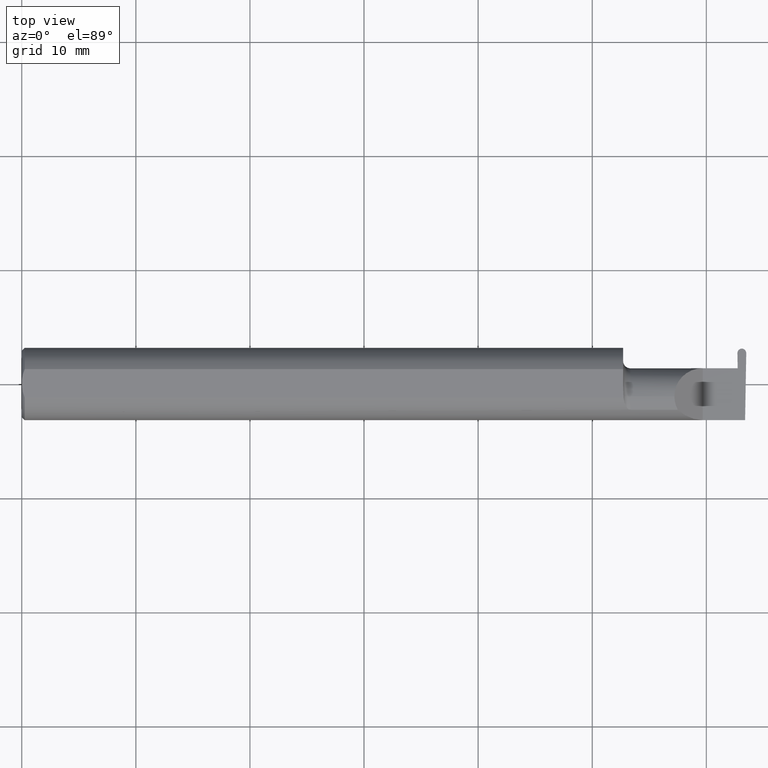
[diagram: clean part render]
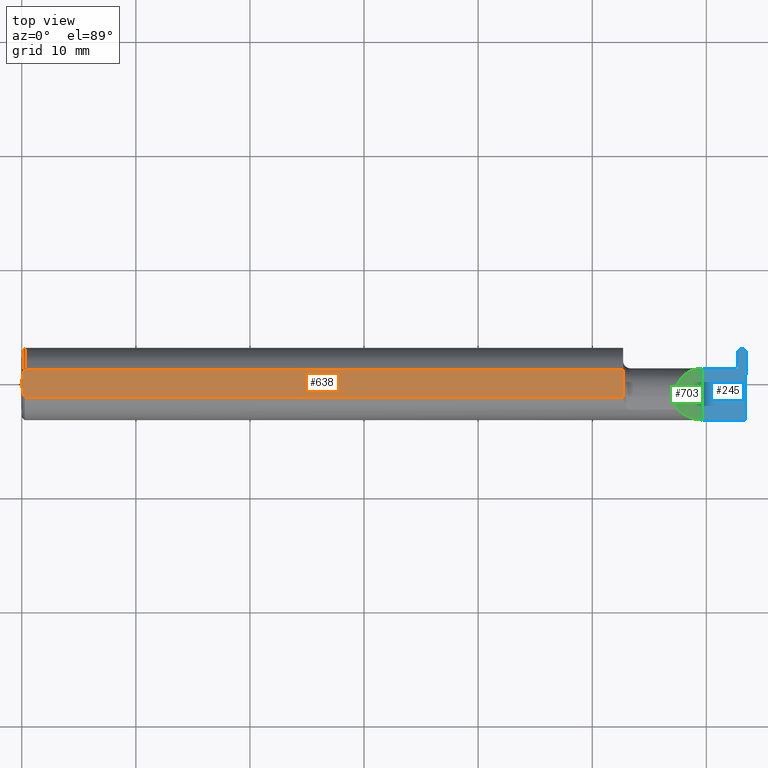
[diagram: same view with three faces highlighted in distinct colors, each labeled with its STEP entity id]
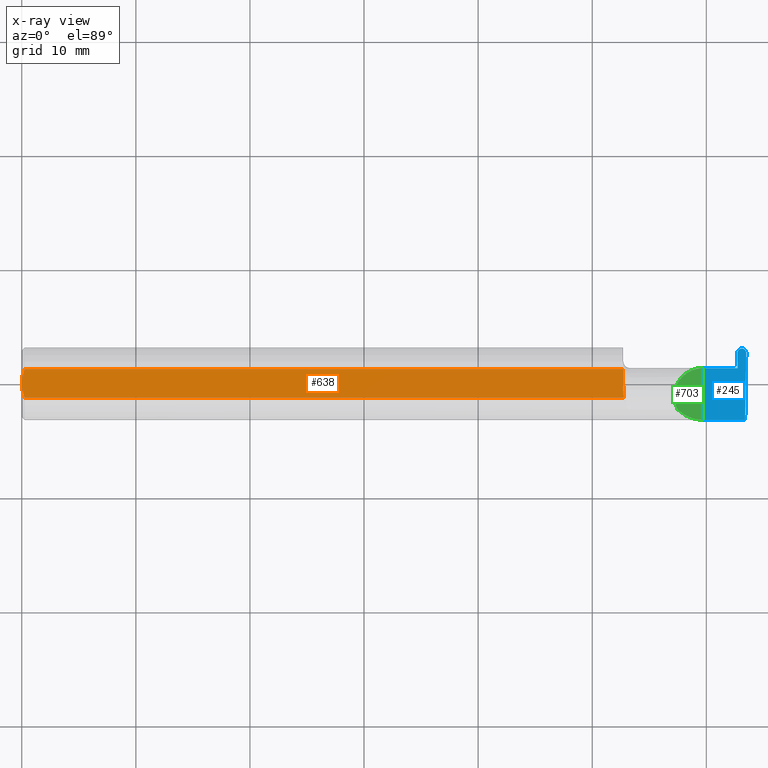
[diagram: x-ray of the same camera — body ghosted, the three highlighted faces saturated]
A machine part, top view with three faces highlighted in distinct colors.
The next image is the same camera in x-ray (body ghosted, the three faces saturated) — at least one of them is partly hidden behind the body in this view.
Their STEP definitions:

[orange] entity #638 — the highlighted planar face has unit normal (0, 0, 1).
#7 = CARTESIAN_POINT ( 'NONE',  ( 0.000000000000000000, 3.414809992080329023E-17, 0.1149999999999999217 ) ) ;
#8 = CARTESIAN_POINT ( 'NONE',  ( 0.01000000000000042348, 0.04898979485566374442, 0.1149999999999999217 ) ) ;
#20 = ORIENTED_EDGE ( 'NONE', *, *, #484, .T. ) ;
#24 = CARTESIAN_POINT ( 'NONE',  ( 2.076314561435346207, -0.04400000000000004602, 0.1149999999999999217 ) ) ;
#31 = DIRECTION ( 'NONE',  ( -1.000000000000000000, -0.000000000000000000, -0.000000000000000000 ) ) ;
#42 = VERTEX_POINT ( 'NONE', #165 ) ;
#70 = ORIENTED_EDGE ( 'NONE', *, *, #287, .F. ) ;
#74 = CARTESIAN_POINT ( 'NONE',  ( 2.075000000000000178, 0.04898979485566374442, 0.1149999999999999217 ) ) ;
#93 = ORIENTED_EDGE ( 'NONE', *, *, #693, .T. ) ;
#115 = CARTESIAN_POINT ( 'NONE',  ( 2.076314561435346651, -0.04483155449656758829, 0.1149999999999999356 ) ) ;
#127 = CARTESIAN_POINT ( 'NONE',  ( 0.006956794985978487743, -0.04122489957750442163, 0.1149999999999999356 ) ) ;
#138 = EDGE_CURVE ( 'NONE', #760, #381, #666, .T. ) ;
#149 = VERTEX_POINT ( 'NONE', #375 ) ;
#151 = CARTESIAN_POINT ( 'NONE',  ( 2.075000000000000178, -0.007643795319155048847, 0.1149999999999999356 ) ) ;
#156 = EDGE_CURVE ( 'NONE', #449, #520, #249, .T. ) ;
#161 = CARTESIAN_POINT ( 'NONE',  ( 2.076314561435346207, -0.03672135622230198598, 0.1149999999999999356 ) ) ;
#165 = CARTESIAN_POINT ( 'NONE',  ( 2.076314561435346207, -0.04400000000000004602, 0.1149999999999999217 ) ) ;
#169 = CARTESIAN_POINT ( 'NONE',  ( 0.000000000000000000, 3.414809992080329023E-17, 0.1149999999999999217 ) ) ;
#173 = CARTESIAN_POINT ( 'NONE',  ( 2.075000000000000178, -0.0003651515414569473403, 0.1149999999999999217 ) ) ;
#190 = CARTESIAN_POINT ( 'NONE',  ( 0.004414142251465132810, -0.03315347577847933824, 0.1149999999999999356 ) ) ;
#204 = PLANE ( 'NONE',  #463 ) ;
#223 = CARTESIAN_POINT ( 'NONE',  ( 0.01000000000000042348, 0.04898979485566374442, 0.1149999999999999217 ) ) ;
#249 = LINE ( 'NONE', #300, #644 ) ;
#262 = B_SPLINE_CURVE_WITH_KNOTS ( 'NONE', 3,
 ( #169, #420, #679, #223 ),
 .UNSPECIFIED., .F., .F.,
 ( 4, 4 ),
 ( 0.002331518380383306322, 0.003601362264757408584 ),
 .UNSPECIFIED. ) ;
#276 = CARTESIAN_POINT ( 'NONE',  ( 2.753179778023443269, 0.1250000000000000278, 0.1149999999999999217 ) ) ;
#287 = EDGE_CURVE ( 'NONE', #381, #505, #262, .T. ) ;
#291 = CARTESIAN_POINT ( 'NONE',  ( 2.076290282237983398, -0.04815824740011447752, 0.1149999999999999356 ) ) ;
#300 = CARTESIAN_POINT ( 'NONE',  ( 2.075000000000000178, 0.1250000000000000278, 0.1149999999999999217 ) ) ;
#303 = VECTOR ( 'NONE', #31, 39.37007874015748143 ) ;
#325 = CARTESIAN_POINT ( 'NONE',  ( 0.01000000000000042348, -0.04898979485566374442, 0.1149999999999999217 ) ) ;
#332 = CARTESIAN_POINT ( 'NONE',  ( 0.000000000000000000, 0.04898979485566374442, 0.1149999999999999217 ) ) ;
#359 = B_SPLINE_CURVE_WITH_KNOTS ( 'NONE', 3,
 ( #686, #291, #497, #554, #115, #562 ),
 .UNSPECIFIED., .F., .F.,
 ( 4, 2, 4 ),
 ( 0.009319464280391123040, 0.009382478399794849655, 0.009445492519198574535 ),
 .UNSPECIFIED. ) ;
#366 = DIRECTION ( 'NONE',  ( 0.000000000000000000, 1.000000000000000000, 0.000000000000000000 ) ) ;
#368 = CARTESIAN_POINT ( 'NONE',  ( 0.0009328476361608245343, -0.01672844127736827086, 0.1149999999999999217 ) ) ;
#375 = CARTESIAN_POINT ( 'NONE',  ( 2.076278290187155484, -0.04898979485567048209, 0.1149999999999999217 ) ) ;
#381 = VERTEX_POINT ( 'NONE', #694 ) ;
#386 = DIRECTION ( 'NONE',  ( 1.000000000000000000, 0.000000000000000000, 0.000000000000000000 ) ) ;
#391 = LINE ( 'NONE', #332, #303 ) ;
#406 = CARTESIAN_POINT ( 'NONE',  ( 2.076049928736321881, -0.02945016372790499812, 0.1149999999999999356 ) ) ;
#420 = CARTESIAN_POINT ( 'NONE',  ( 1.642610067308552155E-16, 0.01684316307400865464, 0.1149999999999999217 ) ) ;
#449 = VERTEX_POINT ( 'NONE', #173 ) ;
#463 = AXIS2_PLACEMENT_3D ( 'NONE', #276, #609, #779 ) ;
#471 = ORIENTED_EDGE ( 'NONE', *, *, #138, .F. ) ;
#484 = EDGE_CURVE ( 'NONE', #149, #42, #359, .T. ) ;
#497 = CARTESIAN_POINT ( 'NONE',  ( 2.076299368641396192, -0.04732662288298106201, 0.1149999999999999356 ) ) ;
#505 = VERTEX_POINT ( 'NONE', #8 ) ;
#520 = VERTEX_POINT ( 'NONE', #74 ) ;
#528 = VECTOR ( 'NONE', #386, 39.37007874015748143 ) ;
#534 = FACE_OUTER_BOUND ( 'NONE', #661, .T. ) ;
#554 = CARTESIAN_POINT ( 'NONE',  ( 2.076311508822837215, -0.04566321385558330670, 0.1149999999999999217 ) ) ;
#559 = ORIENTED_EDGE ( 'NONE', *, *, #156, .T. ) ;
#560 = EDGE_CURVE ( 'NONE', #760, #149, #586, .T. ) ;
#562 = CARTESIAN_POINT ( 'NONE',  ( 2.076314561435346207, -0.04400000000000004602, 0.1149999999999999217 ) ) ;
#579 = CARTESIAN_POINT ( 'NONE',  ( 1.541666659510484467E-16, -0.008419750986449443114, 0.1149999999999999356 ) ) ;
#585 = ORIENTED_EDGE ( 'NONE', *, *, #560, .T. ) ;
#586 = LINE ( 'NONE', #702, #528 ) ;
#609 = DIRECTION ( 'NONE',  ( 0.000000000000000000, 0.000000000000000000, 1.000000000000000000 ) ) ;
#638 = ADVANCED_FACE ( 'NONE', ( #534 ), #204, .T. ) ;
#644 = VECTOR ( 'NONE', #366, 39.37007874015748143 ) ;
#661 = EDGE_LOOP ( 'NONE', ( #585, #20, #744, #559, #93, #70, #471 ) ) ;
#666 = B_SPLINE_CURVE_WITH_KNOTS ( 'NONE', 3,
 ( #751, #127, #190, #368, #579, #7 ),
 .UNSPECIFIED., .F., .F.,
 ( 4, 2, 4 ),
 ( 0.001061950514642623312, 0.001696734447512964709, 0.002331518380383306322 ),
 .UNSPECIFIED. ) ;
#667 = CARTESIAN_POINT ( 'NONE',  ( 2.075000000000000178, -0.0003651515414569473403, 0.1149999999999999217 ) ) ;
#679 = CARTESIAN_POINT ( 'NONE',  ( 0.003880275146595849479, 0.03337499979622342988, 0.1149999999999999217 ) ) ;
#686 = CARTESIAN_POINT ( 'NONE',  ( 2.076278290187155484, -0.04898979485567048209, 0.1149999999999999217 ) ) ;
#693 = EDGE_CURVE ( 'NONE', #520, #505, #391, .T. ) ;
#694 = CARTESIAN_POINT ( 'NONE',  ( 0.000000000000000000, 3.414809992080329023E-17, 0.1149999999999999217 ) ) ;
#702 = CARTESIAN_POINT ( 'NONE',  ( 0.000000000000000000, -0.04898979485566374442, 0.1149999999999999217 ) ) ;
#709 = EDGE_CURVE ( 'NONE', #42, #449, #787, .T. ) ;
#744 = ORIENTED_EDGE ( 'NONE', *, *, #709, .T. ) ;
#751 = CARTESIAN_POINT ( 'NONE',  ( 0.01000000000000042348, -0.04898979485566374442, 0.1149999999999999217 ) ) ;
#760 = VERTEX_POINT ( 'NONE', #325 ) ;
#777 = CARTESIAN_POINT ( 'NONE',  ( 2.075386034718893935, -0.01491156948752236575, 0.1149999999999999217 ) ) ;
#779 = DIRECTION ( 'NONE',  ( 1.000000000000000000, 0.000000000000000000, -0.000000000000000000 ) ) ;
#787 = B_SPLINE_CURVE_WITH_KNOTS ( 'NONE', 3,
 ( #24, #161, #406, #777, #151, #667 ),
 .UNSPECIFIED., .F., .F.,
 ( 4, 2, 4 ),
 ( 0.009445492519198574535, 0.009997058688341168425, 0.01054862485748376232 ),
 .UNSPECIFIED. ) ;

[blue] entity #245 — the highlighted planar face has unit normal (-0, 0, -1).
#19 = CARTESIAN_POINT ( 'NONE',  ( 2.484878586598046724, 0.1219999999999999835, 0.000000000000000000 ) ) ;
#22 = VECTOR ( 'NONE', #715, 39.37007874015748854 ) ;
#32 = LINE ( 'NONE', #174, #417 ) ;
#40 = CARTESIAN_POINT ( 'NONE',  ( 2.469318218598223424, 0.1152528334169432428, 1.896935457484700715E-17 ) ) ;
#49 = CARTESIAN_POINT ( 'NONE',  ( 2.484590643401953791, 0.1219999999999999835, 0.000000000000000000 ) ) ;
#60 = DIRECTION ( 'NONE',  ( 1.000000000000000000, -0.000000000000000000, -0.000000000000000000 ) ) ;
#77 = EDGE_CURVE ( 'NONE', #620, #597, #107, .T. ) ;
#82 = CARTESIAN_POINT ( 'NONE',  ( 2.484590643401953791, 0.1219999999999999835, 0.000000000000000000 ) ) ;
#86 = LINE ( 'NONE', #517, #645 ) ;
#90 = ORIENTED_EDGE ( 'NONE', *, *, #372, .F. ) ;
#100 = CARTESIAN_POINT ( 'NONE',  ( 2.475584878715684667, 0.1219999999999998308, 1.820191004942760528E-17 ) ) ;
#105 = VERTEX_POINT ( 'NONE', #738 ) ;
#107 = LINE ( 'NONE', #487, #771 ) ;
#109 = ORIENTED_EDGE ( 'NONE', *, *, #732, .F. ) ;
#111 = ORIENTED_EDGE ( 'NONE', *, *, #257, .F. ) ;
#137 = VERTEX_POINT ( 'NONE', #621 ) ;
#174 = CARTESIAN_POINT ( 'NONE',  ( 2.075000000000000178, 0.05399999999999999245, 5.204748896376245769E-17 ) ) ;
#212 = CARTESIAN_POINT ( 'NONE',  ( 2.499984884025182375, 0.1057354023860208464, 0.000000000000000000 ) ) ;
#219 = VECTOR ( 'NONE', #551, 39.37007874015748854 ) ;
#224 = VERTEX_POINT ( 'NONE', #601 ) ;
#227 = VERTEX_POINT ( 'NONE', #212 ) ;
#241 = LINE ( 'NONE', #432, #415 ) ;
#245 = ADVANCED_FACE ( 'NONE', ( #349 ), #476, .F. ) ;
#252 = ORIENTED_EDGE ( 'NONE', *, *, #778, .F. ) ;
#257 = EDGE_CURVE ( 'NONE', #227, #620, #675, .T. ) ;
#286 = DIRECTION ( 'NONE',  ( -1.000000000000000000, 0.000000000000000000, 1.224646799147352468E-16 ) ) ;
#289 = VECTOR ( 'NONE', #631, 39.37007874015748143 ) ;
#290 = DIRECTION ( 'NONE',  ( -1.000000000000000000, -0.000000000000000000, -0.000000000000000000 ) ) ;
#313 = ORIENTED_EDGE ( 'NONE', *, *, #329, .F. ) ;
#318 = CARTESIAN_POINT ( 'NONE',  ( 2.500151011401777534, 0.1152528334169432289, -1.895304614445360883E-18 ) ) ;
#322 = CARTESIAN_POINT ( 'NONE',  ( 2.493884351284315848, 0.1219999999999998030, -1.127860089025957857E-18 ) ) ;
#329 = EDGE_CURVE ( 'NONE', #105, #224, #241, .T. ) ;
#342 = AXIS2_PLACEMENT_3D ( 'NONE', #731, #416, #286 ) ;
#349 = FACE_OUTER_BOUND ( 'NONE', #652, .T. ) ;
#364 = ORIENTED_EDGE ( 'NONE', *, *, #766, .T. ) ;
#365 = CARTESIAN_POINT ( 'NONE',  ( 2.469484345974817696, 0.1057354023860208880, 0.000000000000000000 ) ) ;
#372 = EDGE_CURVE ( 'NONE', #597, #137, #578, .T. ) ;
#387 = VERTEX_POINT ( 'NONE', #365 ) ;
#407 = DIRECTION ( 'NONE',  ( 1.000000000000000000, 0.000000000000000000, 0.000000000000000000 ) ) ;
#415 = VECTOR ( 'NONE', #60, 39.37007874015748143 ) ;
#416 = DIRECTION ( 'NONE',  ( -1.224646799147352468E-16, 0.000000000000000000, -1.000000000000000000 ) ) ;
#417 = VECTOR ( 'NONE', #407, 39.37007874015748143 ) ;
#424 = ORIENTED_EDGE ( 'NONE', *, *, #426, .F. ) ;
#426 = EDGE_CURVE ( 'NONE', #224, #387, #494, .T. ) ;
#432 = CARTESIAN_POINT ( 'NONE',  ( 2.470387390782552650, 0.05399999999999999245, 0.000000000000000000 ) ) ;
#467 = CARTESIAN_POINT ( 'NONE',  ( 2.484878586598046724, 0.1219999999999999835, 0.000000000000000000 ) ) ;
#476 = PLANE ( 'NONE',  #342 ) ;
#478 = ORIENTED_EDGE ( 'NONE', *, *, #550, .T. ) ;
#487 = CARTESIAN_POINT ( 'NONE',  ( 3.749399456654637998E-32, -0.1249999999999999861, 3.061616997868380183E-16 ) ) ;
#494 = LINE ( 'NONE', #767, #22 ) ;
#517 = CARTESIAN_POINT ( 'NONE',  ( -3.937007874019685528E-05, 0.1219999999999999835, 0.000000000000000000 ) ) ;
#523 = CARTESIAN_POINT ( 'NONE',  ( 2.499984884025182375, 0.1057354023860208464, 0.000000000000000000 ) ) ;
#525 =( BOUNDED_CURVE ( )  B_SPLINE_CURVE ( 3, ( #523, #318, #322, #19 ),
 .UNSPECIFIED., .F., .F. ) 
 B_SPLINE_CURVE_WITH_KNOTS ( ( 4, 4 ),
 ( 1.677524580234105667, 3.253450286950869685 ),
 .UNSPECIFIED. ) 
 CURVE ( )  GEOMETRIC_REPRESENTATION_ITEM ( )  RATIONAL_B_SPLINE_CURVE ( ( 1.000000000000000000, 0.8035272986452609567, 0.8035272986452609567, 1.000000000000000000 ) ) 
 REPRESENTATION_ITEM ( '' )  );
#536 = CARTESIAN_POINT ( 'NONE',  ( 2.469484345974817696, 0.1057354023860208880, 0.000000000000000000 ) ) ;
#550 = EDGE_CURVE ( 'NONE', #227, #640, #525, .T. ) ;
#551 = DIRECTION ( 'NONE',  ( -0.01745240643727679133, -0.9998476951563912696, 0.000000000000000000 ) ) ;
#578 = LINE ( 'NONE', #811, #289 ) ;
#597 = VERTEX_POINT ( 'NONE', #783 ) ;
#601 = CARTESIAN_POINT ( 'NONE',  ( 2.470387390782552650, 0.05399999999999999245, 0.000000000000000000 ) ) ;
#611 = CARTESIAN_POINT ( 'NONE',  ( 2.499997675007925135, 0.1064681972965584866, 0.000000000000000000 ) ) ;
#620 = VERTEX_POINT ( 'NONE', #654 ) ;
#621 = CARTESIAN_POINT ( 'NONE',  ( 2.350000000000000089, 0.05399999999999999245, 5.204748896376245769E-17 ) ) ;
#631 = DIRECTION ( 'NONE',  ( -0.000000000000000000, 1.000000000000000000, -0.000000000000000000 ) ) ;
#640 = VERTEX_POINT ( 'NONE', #467 ) ;
#645 = VECTOR ( 'NONE', #769, 39.37007874015748143 ) ;
#648 = VERTEX_POINT ( 'NONE', #82 ) ;
#652 = EDGE_LOOP ( 'NONE', ( #109, #364, #424, #313, #252, #90, #680, #111, #478 ) ) ;
#654 = CARTESIAN_POINT ( 'NONE',  ( 2.495957382595297869, -0.1250000000000000000, 0.000000000000000000 ) ) ;
#675 = LINE ( 'NONE', #611, #219 ) ;
#680 = ORIENTED_EDGE ( 'NONE', *, *, #77, .F. ) ;
#715 = DIRECTION ( 'NONE',  ( -0.01745240643727408517, 0.9998476951563912696, -0.000000000000000000 ) ) ;
#731 = CARTESIAN_POINT ( 'NONE',  ( 2.500000000000000000, -0.2500000000000000555, 0.000000000000000000 ) ) ;
#732 = EDGE_CURVE ( 'NONE', #648, #640, #86, .T. ) ;
#738 = CARTESIAN_POINT ( 'NONE',  ( 2.464200446367434516, 0.05399999999999999245, 0.000000000000000000 ) ) ;
#766 = EDGE_CURVE ( 'NONE', #648, #387, #800, .T. ) ;
#767 = CARTESIAN_POINT ( 'NONE',  ( 2.469471554992074935, 0.1064681972965584728, 0.000000000000000000 ) ) ;
#769 = DIRECTION ( 'NONE',  ( 1.000000000000000000, -0.000000000000000000, -0.000000000000000000 ) ) ;
#771 = VECTOR ( 'NONE', #290, 39.37007874015748143 ) ;
#778 = EDGE_CURVE ( 'NONE', #137, #105, #32, .T. ) ;
#783 = CARTESIAN_POINT ( 'NONE',  ( 2.350000000000000089, -0.1250000000000000278, 1.836970198721028825E-17 ) ) ;
#800 =( BOUNDED_CURVE ( )  B_SPLINE_CURVE ( 3, ( #49, #100, #40, #536 ),
 .UNSPECIFIED., .F., .T. ) 
 B_SPLINE_CURVE_WITH_KNOTS ( ( 4, 4 ),
 ( 6.171327673818510995, 7.747253380535275902 ),
 .UNSPECIFIED. ) 
 CURVE ( )  GEOMETRIC_REPRESENTATION_ITEM ( )  RATIONAL_B_SPLINE_CURVE ( ( 1.000000000000000000, 0.8035272986452608457, 0.8035272986452608457, 1.000000000000000000 ) ) 
 REPRESENTATION_ITEM ( '' )  );
#811 = CARTESIAN_POINT ( 'NONE',  ( 2.350000000000000089, -0.2500000000000000555, 1.836970198721028825E-17 ) ) ;

[green] entity #703 — the highlighted planar face has unit normal (-0.7071, 0, -0.7071).
#17 =( BOUNDED_CURVE ( )  B_SPLINE_CURVE ( 3, ( #279, #786, #618, #669 ),
 .UNSPECIFIED., .F., .T. ) 
 B_SPLINE_CURVE_WITH_KNOTS ( ( 4, 4 ),
 ( 4.712388980384689674, 5.474523801125206646 ),
 .UNSPECIFIED. ) 
 CURVE ( )  GEOMETRIC_REPRESENTATION_ITEM ( )  RATIONAL_B_SPLINE_CURVE ( ( 1.000000000000000000, 0.9521787881681383903, 0.9521787881681383903, 1.000000000000000000 ) ) 
 REPRESENTATION_ITEM ( '' )  );
#23 = AXIS2_PLACEMENT_3D ( 'NONE', #327, #538, #591 ) ;
#62 = CARTESIAN_POINT ( 'NONE',  ( 2.292592929112562405, 0.05399999999999999245, 0.05740707088743673275 ) ) ;
#94 =( BOUNDED_CURVE ( )  B_SPLINE_CURVE ( 3, ( #335, #164, #269, #660 ),
 .UNSPECIFIED., .F., .F. ) 
 B_SPLINE_CURVE_WITH_KNOTS ( ( 4, 4 ),
 ( 5.789722842198295361, 6.283185307179586232 ),
 .UNSPECIFIED. ) 
 CURVE ( )  GEOMETRIC_REPRESENTATION_ITEM ( )  RATIONAL_B_SPLINE_CURVE ( ( 1.000000000000000000, 0.9798106333074687591, 0.9798106333074687591, 1.000000000000000000 ) ) 
 REPRESENTATION_ITEM ( '' )  );
#137 = VERTEX_POINT ( 'NONE', #621 ) ;
#152 = VERTEX_POINT ( 'NONE', #503 ) ;
#164 = CARTESIAN_POINT ( 'NONE',  ( 2.255977500337024377, -0.07607783494366275601, 0.09402249966297451800 ) ) ;
#182 = EDGE_CURVE ( 'NONE', #597, #533, #17, .T. ) ;
#251 = ORIENTED_EDGE ( 'NONE', *, *, #294, .F. ) ;
#269 = CARTESIAN_POINT ( 'NONE',  ( 2.251999999999998892, -0.06028551311893200898, 0.09800000000000005929 ) ) ;
#274 = ORIENTED_EDGE ( 'NONE', *, *, #625, .F. ) ;
#279 = CARTESIAN_POINT ( 'NONE',  ( 2.350000000000000089, -0.1250000000000000278, 1.836970198721028825E-17 ) ) ;
#289 = VECTOR ( 'NONE', #631, 39.37007874015748143 ) ;
#294 = EDGE_CURVE ( 'NONE', #152, #137, #498, .T. ) ;
#298 = ORIENTED_EDGE ( 'NONE', *, *, #372, .T. ) ;
#327 = CARTESIAN_POINT ( 'NONE',  ( 2.350000000000000089, -0.2500000000000000555, 1.836970198721028825E-17 ) ) ;
#335 = CARTESIAN_POINT ( 'NONE',  ( 2.263691591372603895, -0.09042045454545441507, 0.08630840862739512509 ) ) ;
#357 = CARTESIAN_POINT ( 'NONE',  ( 2.350000000000000089, 0.05399999999999999245, 5.204748896376245769E-17 ) ) ;
#372 = EDGE_CURVE ( 'NONE', #597, #137, #578, .T. ) ;
#373 = CARTESIAN_POINT ( 'NONE',  ( 2.251999999999998892, -0.04400000000000004602, 0.09800000000000005929 ) ) ;
#377 = ORIENTED_EDGE ( 'NONE', *, *, #182, .F. ) ;
#452 = EDGE_LOOP ( 'NONE', ( #274, #377, #298, #251 ) ) ;
#498 =( BOUNDED_CURVE ( )  B_SPLINE_CURVE ( 3, ( #373, #506, #62, #357 ),
 .UNSPECIFIED., .F., .F. ) 
 B_SPLINE_CURVE_WITH_KNOTS ( ( 4, 4 ),
 ( 0.000000000000000000, 1.570796326794896336 ),
 .UNSPECIFIED. ) 
 CURVE ( )  GEOMETRIC_REPRESENTATION_ITEM ( )  RATIONAL_B_SPLINE_CURVE ( ( 1.000000000000000000, 0.8047378541243650485, 0.8047378541243650485, 1.000000000000000000 ) ) 
 REPRESENTATION_ITEM ( '' )  );
#503 = CARTESIAN_POINT ( 'NONE',  ( 2.251999999999998892, -0.04400000000000004602, 0.09800000000000005929 ) ) ;
#506 = CARTESIAN_POINT ( 'NONE',  ( 2.251999999999999336, 0.01340707088743666418, 0.09800000000000003153 ) ) ;
#516 = CARTESIAN_POINT ( 'NONE',  ( 2.263691591372603895, -0.09042045454545441507, 0.08630840862739512509 ) ) ;
#533 = VERTEX_POINT ( 'NONE', #516 ) ;
#538 = DIRECTION ( 'NONE',  ( -0.7071067811865439090, 0.000000000000000000, -0.7071067811865511255 ) ) ;
#578 = LINE ( 'NONE', #811, #289 ) ;
#591 = DIRECTION ( 'NONE',  ( -0.7071067811865511255, 0.000000000000000000, 0.7071067811865439090 ) ) ;
#597 = VERTEX_POINT ( 'NONE', #783 ) ;
#618 = CARTESIAN_POINT ( 'NONE',  ( 2.287236475649208067, -0.1128945894460738203, 0.06276352435079109171 ) ) ;
#621 = CARTESIAN_POINT ( 'NONE',  ( 2.350000000000000089, 0.05399999999999999245, 5.204748896376245769E-17 ) ) ;
#625 = EDGE_CURVE ( 'NONE', #533, #152, #94, .T. ) ;
#631 = DIRECTION ( 'NONE',  ( -0.000000000000000000, 1.000000000000000000, -0.000000000000000000 ) ) ;
#660 = CARTESIAN_POINT ( 'NONE',  ( 2.251999999999998892, -0.04400000000000004602, 0.09800000000000005929 ) ) ;
#669 = CARTESIAN_POINT ( 'NONE',  ( 2.263691591372603895, -0.09042045454545441507, 0.08630840862739512509 ) ) ;
#672 = PLANE ( 'NONE',  #23 ) ;
#703 = ADVANCED_FACE ( 'NONE', ( #793 ), #672, .F. ) ;
#783 = CARTESIAN_POINT ( 'NONE',  ( 2.350000000000000089, -0.1250000000000000278, 1.836970198721028825E-17 ) ) ;
#786 = CARTESIAN_POINT ( 'NONE',  ( 2.317450832343515899, -0.1250000000000000000, 0.03254916765648416949 ) ) ;
#793 = FACE_OUTER_BOUND ( 'NONE', #452, .T. ) ;
#811 = CARTESIAN_POINT ( 'NONE',  ( 2.350000000000000089, -0.2500000000000000555, 1.836970198721028825E-17 ) ) ;